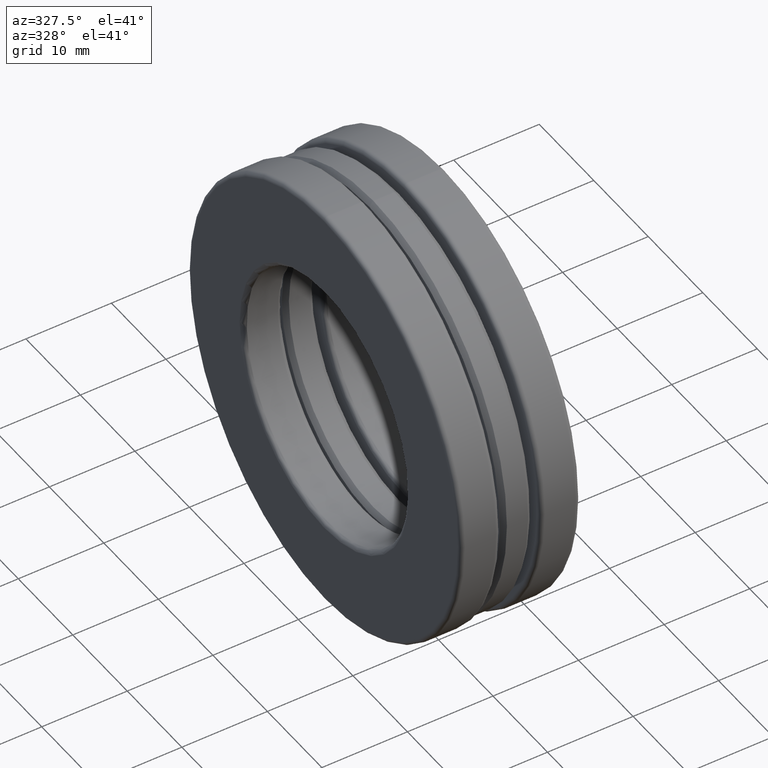
[diagram: clean part render]
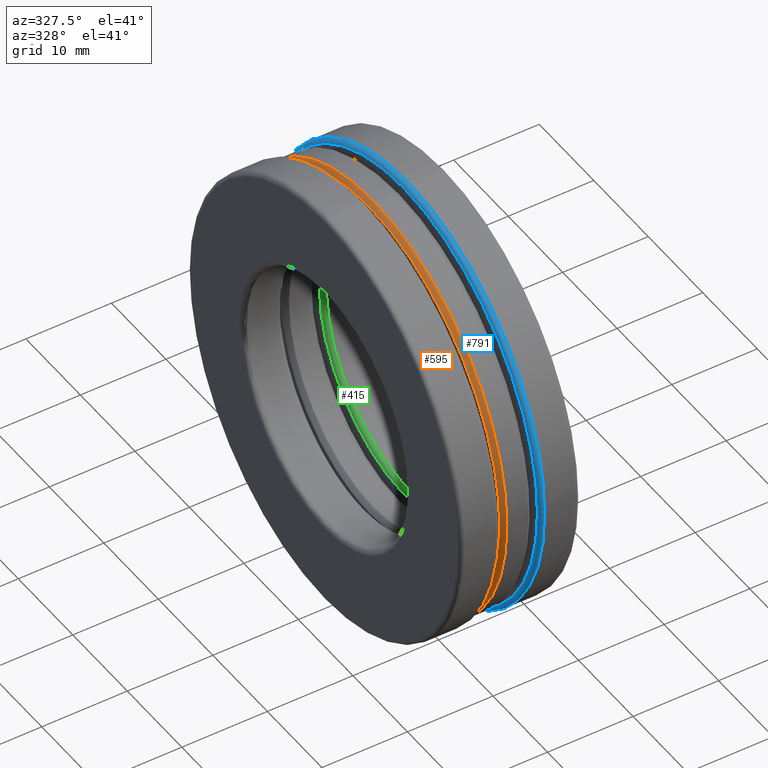
[diagram: same view with three faces highlighted in distinct colors, each labeled with its STEP entity id]
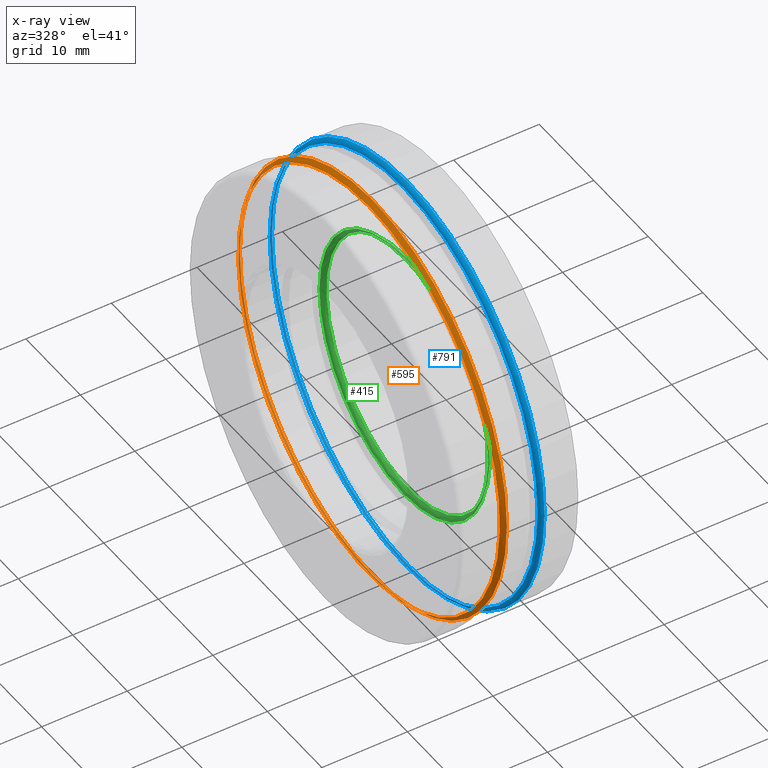
[diagram: x-ray of the same camera — body ghosted, the three highlighted faces saturated]
A machine part, auxiliary view with three faces highlighted in distinct colors.
The next image is the same camera in x-ray (body ghosted, the three faces saturated) — at least one of them is partly hidden behind the body in this view.
Their STEP definitions:

[orange] entity #595 — the highlighted conical surface has half-angle 45 deg.
#2 = CONICAL_SURFACE ( 'NONE', #286, 0.9444999999999999000, 0.7853981633974492800 ) ;
#23 = VERTEX_POINT ( 'NONE', #521 ) ;
#37 = CARTESIAN_POINT ( 'NONE',  ( -0.06887500000000003300, 0.0000000000000000000, 0.0000000000000000000 ) ) ;
#87 = DIRECTION ( 'NONE',  ( 0.0000000000000000000, 0.0000000000000000000, 1.000000000000000000 ) ) ;
#149 = ORIENTED_EDGE ( 'NONE', *, *, #610, .F. ) ;
#164 = EDGE_LOOP ( 'NONE', ( #149 ) ) ;
#216 = DIRECTION ( 'NONE',  ( -1.000000000000000000, -0.0000000000000000000, -0.0000000000000000000 ) ) ;
#233 = DIRECTION ( 'NONE',  ( 0.0000000000000000000, 0.0000000000000000000, -1.000000000000000000 ) ) ;
#247 = DIRECTION ( 'NONE',  ( -1.000000000000000000, -0.0000000000000000000, -0.0000000000000000000 ) ) ;
#259 = CIRCLE ( 'NONE', #412, 0.9444999999999999000 ) ;
#282 = CARTESIAN_POINT ( 'NONE',  ( -0.04887500000000000900, 0.0000000000000000000, 0.9644999999999999100 ) ) ;
#286 = AXIS2_PLACEMENT_3D ( 'NONE', #427, #669, #233 ) ;
#292 = CIRCLE ( 'NONE', #725, 0.9644999999999999100 ) ;
#402 = CARTESIAN_POINT ( 'NONE',  ( -0.04887500000000000900, 0.0000000000000000000, 0.0000000000000000000 ) ) ;
#412 = AXIS2_PLACEMENT_3D ( 'NONE', #37, #247, #437 ) ;
#427 = CARTESIAN_POINT ( 'NONE',  ( -0.06887500000000003300, 0.0000000000000000000, 0.0000000000000000000 ) ) ;
#437 = DIRECTION ( 'NONE',  ( 0.0000000000000000000, 0.0000000000000000000, 1.000000000000000000 ) ) ;
#521 = CARTESIAN_POINT ( 'NONE',  ( -0.06887500000000003300, 0.0000000000000000000, 0.9444999999999999000 ) ) ;
#530 = VERTEX_POINT ( 'NONE', #282 ) ;
#582 = FACE_OUTER_BOUND ( 'NONE', #676, .T. ) ;
#587 = ORIENTED_EDGE ( 'NONE', *, *, #702, .T. ) ;
#595 = ADVANCED_FACE ( 'NONE', ( #582, #656 ), #2, .T. ) ;
#610 = EDGE_CURVE ( 'NONE', #23, #23, #259, .T. ) ;
#656 = FACE_BOUND ( 'NONE', #164, .T. ) ;
#669 = DIRECTION ( 'NONE',  ( 1.000000000000000000, 0.0000000000000000000, 0.0000000000000000000 ) ) ;
#676 = EDGE_LOOP ( 'NONE', ( #587 ) ) ;
#702 = EDGE_CURVE ( 'NONE', #530, #530, #292, .T. ) ;
#725 = AXIS2_PLACEMENT_3D ( 'NONE', #402, #216, #87 ) ;

[blue] entity #791 — the highlighted toroidal blend (fillet) surface has major radius 24.4983 mm and minor (blend) radius 0.508 mm.
#18 = ORIENTED_EDGE ( 'NONE', *, *, #295, .T. ) ;
#47 = EDGE_LOOP ( 'NONE', ( #398 ) ) ;
#96 = AXIS2_PLACEMENT_3D ( 'NONE', #330, #262, #753 ) ;
#111 = AXIS2_PLACEMENT_3D ( 'NONE', #182, #674, #321 ) ;
#146 = CARTESIAN_POINT ( 'NONE',  ( 0.1118351700000003900, 0.0000000000000000000, 0.9845000000000001500 ) ) ;
#156 = FACE_OUTER_BOUND ( 'NONE', #637, .T. ) ;
#173 = DIRECTION ( 'NONE',  ( -1.000000000000000000, -0.0000000000000000000, -0.0000000000000000000 ) ) ;
#182 = CARTESIAN_POINT ( 'NONE',  ( 0.09183517000000036800, 0.0000000000000000000, 0.0000000000000000000 ) ) ;
#262 = DIRECTION ( 'NONE',  ( -1.000000000000000000, -0.0000000000000000000, -0.0000000000000000000 ) ) ;
#273 = FACE_OUTER_BOUND ( 'NONE', #47, .T. ) ;
#295 = EDGE_CURVE ( 'NONE', #641, #641, #394, .T. ) ;
#308 = VERTEX_POINT ( 'NONE', #767 ) ;
#321 = DIRECTION ( 'NONE',  ( 0.0000000000000000000, 0.0000000000000000000, 1.000000000000000000 ) ) ;
#330 = CARTESIAN_POINT ( 'NONE',  ( 0.1118351700000003900, 0.0000000000000000000, 0.0000000000000000000 ) ) ;
#356 = EDGE_CURVE ( 'NONE', #308, #308, #755, .T. ) ;
#394 = CIRCLE ( 'NONE', #96, 0.9845000000000001500 ) ;
#398 = ORIENTED_EDGE ( 'NONE', *, *, #356, .F. ) ;
#430 = TOROIDAL_SURFACE ( 'NONE', #629, 0.9645000000000000200, 0.02000000000000003500 ) ;
#607 = CARTESIAN_POINT ( 'NONE',  ( 0.1118351700000003900, 0.0000000000000000000, 0.0000000000000000000 ) ) ;
#629 = AXIS2_PLACEMENT_3D ( 'NONE', #607, #173, #662 ) ;
#637 = EDGE_LOOP ( 'NONE', ( #18 ) ) ;
#641 = VERTEX_POINT ( 'NONE', #146 ) ;
#662 = DIRECTION ( 'NONE',  ( 0.0000000000000000000, 0.0000000000000000000, 1.000000000000000000 ) ) ;
#674 = DIRECTION ( 'NONE',  ( -1.000000000000000000, -0.0000000000000000000, -0.0000000000000000000 ) ) ;
#753 = DIRECTION ( 'NONE',  ( 0.0000000000000000000, 0.0000000000000000000, 1.000000000000000000 ) ) ;
#755 = CIRCLE ( 'NONE', #111, 0.9645000000000000200 ) ;
#767 = CARTESIAN_POINT ( 'NONE',  ( 0.09183517000000036800, 0.0000000000000000000, 0.9645000000000000200 ) ) ;
#791 = ADVANCED_FACE ( 'NONE', ( #273, #156 ), #430, .T. ) ;

[green] entity #415 — the highlighted toroidal blend (fillet) surface has major radius 15.5067 mm and minor (blend) radius 0.508 mm.
#46 = EDGE_LOOP ( 'NONE', ( #220 ) ) ;
#78 = EDGE_CURVE ( 'NONE', #586, #586, #364, .T. ) ;
#103 = DIRECTION ( 'NONE',  ( 0.0000000000000000000, 0.0000000000000000000, 1.000000000000000000 ) ) ;
#184 = FACE_OUTER_BOUND ( 'NONE', #46, .T. ) ;
#202 = CARTESIAN_POINT ( 'NONE',  ( 0.09183517000000043800, 0.0000000000000000000, 0.6104999999999999300 ) ) ;
#220 = ORIENTED_EDGE ( 'NONE', *, *, #444, .T. ) ;
#228 = AXIS2_PLACEMENT_3D ( 'NONE', #358, #298, #103 ) ;
#231 = EDGE_LOOP ( 'NONE', ( #507 ) ) ;
#298 = DIRECTION ( 'NONE',  ( -1.000000000000000000, -0.0000000000000000000, -0.0000000000000000000 ) ) ;
#358 = CARTESIAN_POINT ( 'NONE',  ( 0.1118351700000004600, 0.0000000000000000000, 0.0000000000000000000 ) ) ;
#364 = CIRCLE ( 'NONE', #372, 0.5905000000000000200 ) ;
#370 = CARTESIAN_POINT ( 'NONE',  ( 0.1118351700000004600, 0.0000000000000000000, 0.5905000000000000200 ) ) ;
#372 = AXIS2_PLACEMENT_3D ( 'NONE', #754, #388, #385 ) ;
#385 = DIRECTION ( 'NONE',  ( 0.0000000000000000000, 0.0000000000000000000, 1.000000000000000000 ) ) ;
#388 = DIRECTION ( 'NONE',  ( -1.000000000000000000, -0.0000000000000000000, -0.0000000000000000000 ) ) ;
#415 = ADVANCED_FACE ( 'NONE', ( #184, #565 ), #546, .T. ) ;
#444 = EDGE_CURVE ( 'NONE', #594, #594, #654, .T. ) ;
#507 = ORIENTED_EDGE ( 'NONE', *, *, #78, .F. ) ;
#546 = TOROIDAL_SURFACE ( 'NONE', #228, 0.6104999999999999300, 0.01999999999999996600 ) ;
#565 = FACE_OUTER_BOUND ( 'NONE', #231, .T. ) ;
#586 = VERTEX_POINT ( 'NONE', #370 ) ;
#594 = VERTEX_POINT ( 'NONE', #202 ) ;
#596 = CARTESIAN_POINT ( 'NONE',  ( 0.09183517000000043800, 0.0000000000000000000, 0.0000000000000000000 ) ) ;
#605 = DIRECTION ( 'NONE',  ( -1.000000000000000000, -0.0000000000000000000, -0.0000000000000000000 ) ) ;
#654 = CIRCLE ( 'NONE', #741, 0.6104999999999999300 ) ;
#741 = AXIS2_PLACEMENT_3D ( 'NONE', #596, #605, #779 ) ;
#754 = CARTESIAN_POINT ( 'NONE',  ( 0.1118351700000004600, 0.0000000000000000000, 0.0000000000000000000 ) ) ;
#779 = DIRECTION ( 'NONE',  ( 0.0000000000000000000, 0.0000000000000000000, 1.000000000000000000 ) ) ;